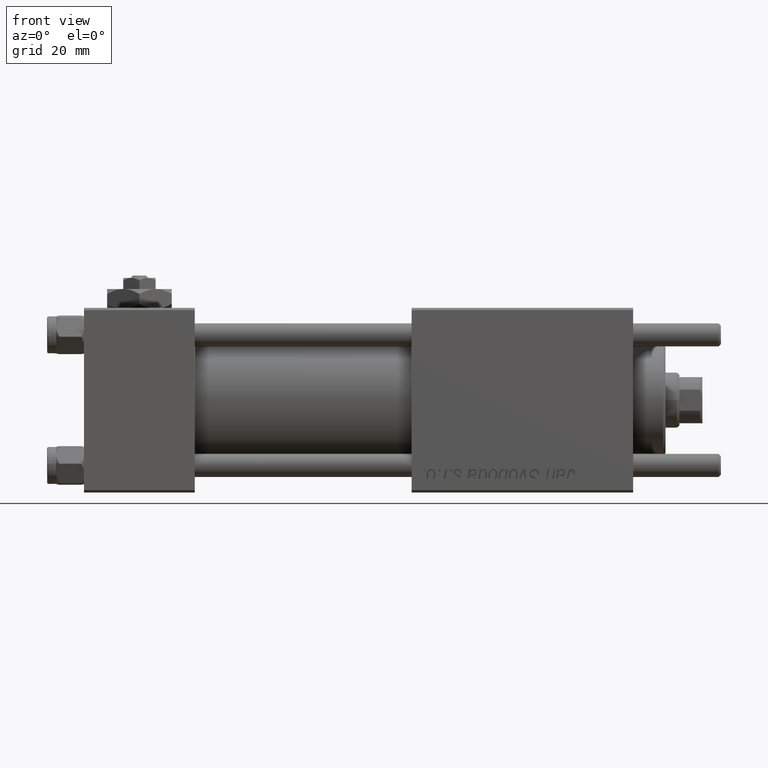
[diagram: clean part render]
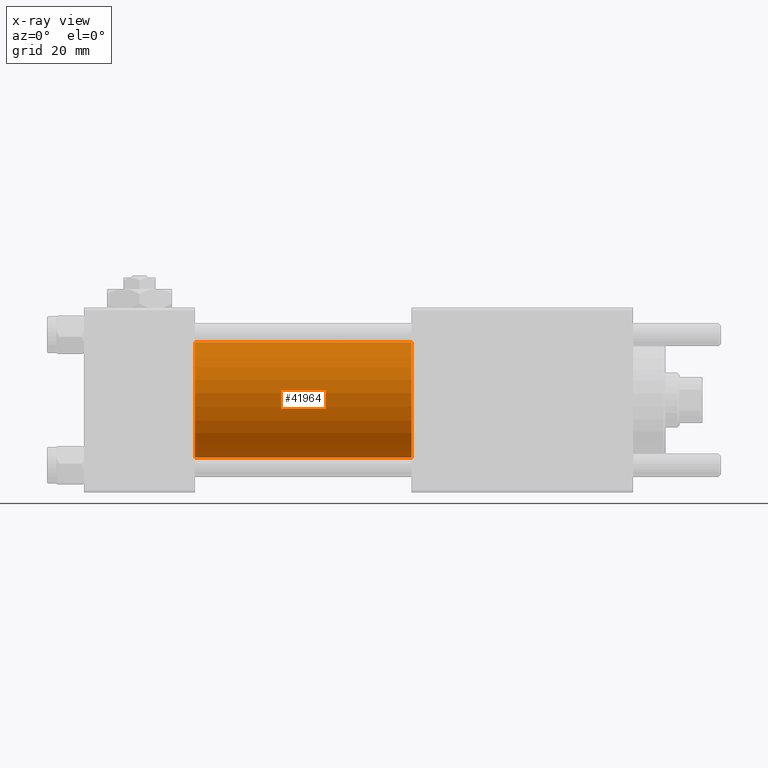
[diagram: x-ray — body ghosted, one internal face saturated and labeled with its STEP entity id]
A machine part, front view, then the same camera in x-ray: the body is ghosted and one INTERNAL B-rep face — a face not visible from any outside direction — is saturated and labeled: STEP entity #41964.
In plain terms, the highlighted cylindrical surface (partial cylindrical patch) has radius 12.5 mm, axis along (-1, -0, -0).
Its self-contained STEP definition (entity closure, byte-faithful):
#1042 = VERTEX_POINT ( 'NONE', #9961 ) ;
#5225 = LINE ( 'NONE', #44564, #17016 ) ;
#6454 = EDGE_CURVE ( 'NONE', #1042, #15362, #30401, .T. ) ;
#7042 = CARTESIAN_POINT ( 'NONE',  ( 71.00000000000001421, -1.071276715031019515E-15, -12.49999999999999645 ) ) ;
#9280 = VECTOR ( 'NONE', #56987, 1000.000000000000000 ) ;
#9961 = CARTESIAN_POINT ( 'NONE',  ( 71.00000000000001421, -1.071276715031019515E-15, -12.49999999999999645 ) ) ;
#11807 = CYLINDRICAL_SURFACE ( 'NONE', #19050, 12.49999999999999645 ) ;
#13940 = ORIENTED_EDGE ( 'NONE', *, *, #56778, .F. ) ;
#15311 = CIRCLE ( 'NONE', #56805, 12.49999999999999645 ) ;
#15362 = VERTEX_POINT ( 'NONE', #20119 ) ;
#17016 = VECTOR ( 'NONE', #31266, 1000.000000000000000 ) ;
#17459 = ORIENTED_EDGE ( 'NONE', *, *, #43545, .T. ) ;
#19050 = AXIS2_PLACEMENT_3D ( 'NONE', #43409, #38978, #57008 ) ;
#20119 = CARTESIAN_POINT ( 'NONE',  ( 24.00000000000000000, -1.071276715031019515E-15, -12.49999999999999645 ) ) ;
#21812 = EDGE_LOOP ( 'NONE', ( #17459, #27736, #50309, #13940 ) ) ;
#24751 = VERTEX_POINT ( 'NONE', #47878 ) ;
#25946 = CARTESIAN_POINT ( 'NONE',  ( 24.00000000000000000, -2.602085213965210642E-15, 12.49999999999999645 ) ) ;
#27736 = ORIENTED_EDGE ( 'NONE', *, *, #6454, .T. ) ;
#27771 = VERTEX_POINT ( 'NONE', #25946 ) ;
#27930 = CARTESIAN_POINT ( 'NONE',  ( 71.00000000000001421, -2.602085213965210642E-15, 0.000000000000000000 ) ) ;
#29544 = CARTESIAN_POINT ( 'NONE',  ( 24.00000000000000000, -2.602085213965210642E-15, 0.000000000000000000 ) ) ;
#30401 = LINE ( 'NONE', #7042, #9280 ) ;
#31266 = DIRECTION ( 'NONE',  ( -1.000000000000000000, -0.000000000000000000, -0.000000000000000000 ) ) ;
#33683 = DIRECTION ( 'NONE',  ( 1.000000000000000000, 0.000000000000000000, 0.000000000000000000 ) ) ;
#37983 = DIRECTION ( 'NONE',  ( 1.000000000000000000, 0.000000000000000000, 0.000000000000000000 ) ) ;
#37995 = AXIS2_PLACEMENT_3D ( 'NONE', #27930, #37983, #41540 ) ;
#38978 = DIRECTION ( 'NONE',  ( -1.000000000000000000, -0.000000000000000000, -0.000000000000000000 ) ) ;
#41540 = DIRECTION ( 'NONE',  ( 0.000000000000000000, 0.000000000000000000, -1.000000000000000000 ) ) ;
#41964 = ADVANCED_FACE ( 'NONE', ( #52284 ), #11807, .F. ) ;
#42619 = EDGE_CURVE ( 'NONE', #27771, #15362, #15311, .T. ) ;
#43409 = CARTESIAN_POINT ( 'NONE',  ( 71.00000000000001421, -2.602085213965210642E-15, 0.000000000000000000 ) ) ;
#43545 = EDGE_CURVE ( 'NONE', #24751, #1042, #50231, .T. ) ;
#44564 = CARTESIAN_POINT ( 'NONE',  ( 71.00000000000001421, -2.602085213965210642E-15, 12.49999999999999645 ) ) ;
#46973 = DIRECTION ( 'NONE',  ( 0.000000000000000000, 0.000000000000000000, -1.000000000000000000 ) ) ;
#47878 = CARTESIAN_POINT ( 'NONE',  ( 71.00000000000001421, -2.602085213965210642E-15, 12.49999999999999645 ) ) ;
#50231 = CIRCLE ( 'NONE', #37995, 12.49999999999999645 ) ;
#50309 = ORIENTED_EDGE ( 'NONE', *, *, #42619, .F. ) ;
#52284 = FACE_OUTER_BOUND ( 'NONE', #21812, .T. ) ;
#56778 = EDGE_CURVE ( 'NONE', #24751, #27771, #5225, .T. ) ;
#56805 = AXIS2_PLACEMENT_3D ( 'NONE', #29544, #33683, #46973 ) ;
#56987 = DIRECTION ( 'NONE',  ( -1.000000000000000000, -0.000000000000000000, -0.000000000000000000 ) ) ;
#57008 = DIRECTION ( 'NONE',  ( 0.000000000000000000, 0.000000000000000000, 1.000000000000000000 ) ) ;